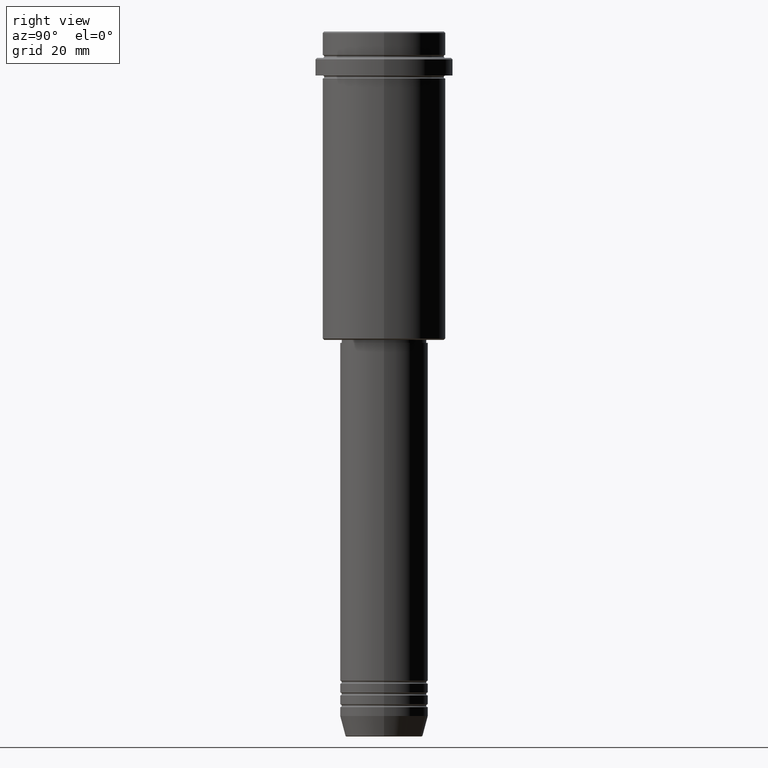
[diagram: clean part render]
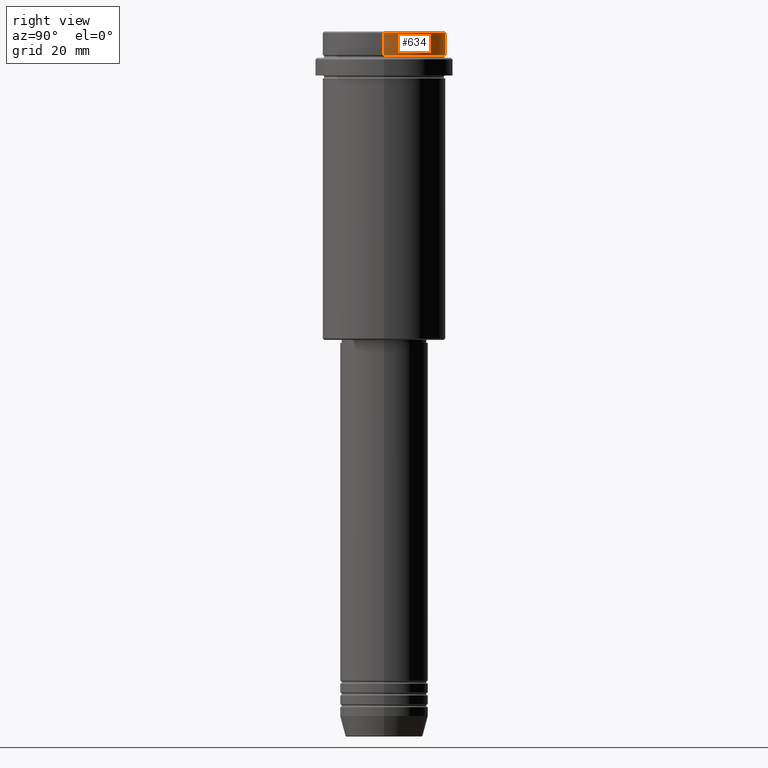
[diagram: same view with one face highlighted and labeled with its STEP entity id]
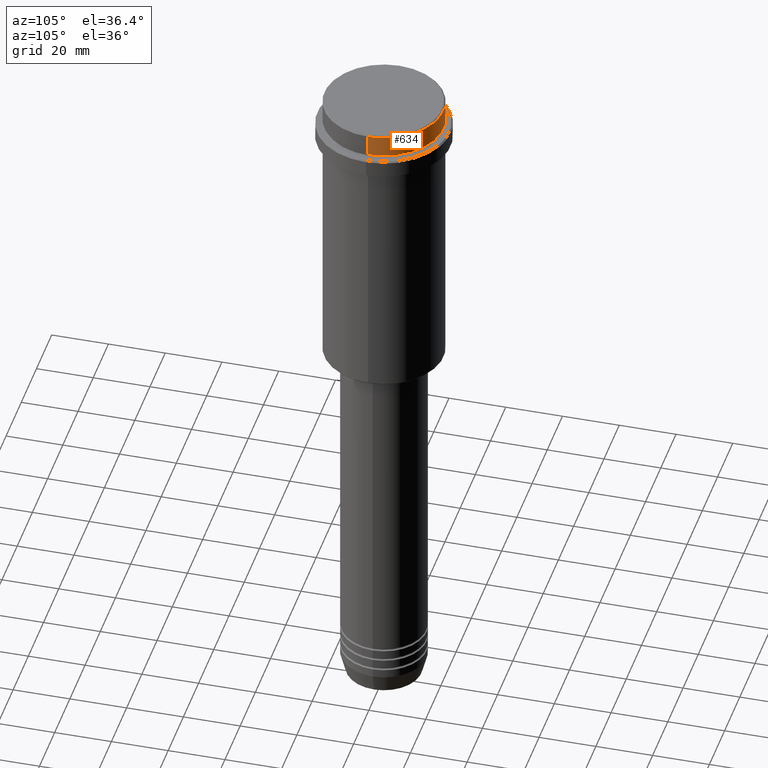
[diagram: same view with one face highlighted and labeled with its STEP entity id]
A machine part, right view. The second image highlights one B-rep face of the part: STEP entity #634.
A second angle (auxiliary view) of the same face is appended — the face is thin or edge-on in the first view.
In plain terms, the highlighted cylindrical surface (partial cylindrical patch) has radius 21 mm, axis along (-0, -0, 1).
Its self-contained STEP definition (entity closure, byte-faithful):
#22 = DIRECTION ( 'NONE',  ( -0.000000000000000000, -0.000000000000000000, 1.000000000000000000 ) ) ;
#46 = CARTESIAN_POINT ( 'NONE',  ( 0.000000000000000000, 0.000000000000000000, 0.000000000000000000 ) ) ;
#61 = CARTESIAN_POINT ( 'NONE',  ( -20.99999999999999645, 2.571758278209441267E-15, -0.5000000000000073275 ) ) ;
#82 = EDGE_CURVE ( 'NONE', #295, #583, #698, .T. ) ;
#194 = VERTEX_POINT ( 'NONE', #340 ) ;
#209 = AXIS2_PLACEMENT_3D ( 'NONE', #46, #22, #900 ) ;
#239 = DIRECTION ( 'NONE',  ( 1.000000000000000000, 0.000000000000000000, 0.000000000000000000 ) ) ;
#263 = CARTESIAN_POINT ( 'NONE',  ( 20.99999999999999645, 0.000000000000000000, 0.000000000000000000 ) ) ;
#292 = CARTESIAN_POINT ( 'NONE',  ( -20.99999999999999645, 2.571758278209441267E-15, -7.999999999999998224 ) ) ;
#295 = VERTEX_POINT ( 'NONE', #61 ) ;
#340 = CARTESIAN_POINT ( 'NONE',  ( 20.99999999999999645, 0.000000000000000000, -7.999999999999998224 ) ) ;
#342 = CARTESIAN_POINT ( 'NONE',  ( -20.99999999999999645, 2.571758278209441267E-15, 0.000000000000000000 ) ) ;
#403 = EDGE_CURVE ( 'NONE', #194, #758, #1285, .T. ) ;
#439 = ORIENTED_EDGE ( 'NONE', *, *, #1226, .T. ) ;
#455 = CYLINDRICAL_SURFACE ( 'NONE', #209, 20.99999999999999645 ) ;
#457 = DIRECTION ( 'NONE',  ( 0.000000000000000000, 0.000000000000000000, -1.000000000000000000 ) ) ;
#470 = FACE_OUTER_BOUND ( 'NONE', #735, .T. ) ;
#505 = ORIENTED_EDGE ( 'NONE', *, *, #628, .F. ) ;
#528 = DIRECTION ( 'NONE',  ( -0.000000000000000000, -0.000000000000000000, 1.000000000000000000 ) ) ;
#575 = LINE ( 'NONE', #263, #1356 ) ;
#583 = VERTEX_POINT ( 'NONE', #652 ) ;
#628 = EDGE_CURVE ( 'NONE', #194, #583, #575, .T. ) ;
#634 = ADVANCED_FACE ( 'NONE', ( #470 ), #455, .T. ) ;
#647 = CARTESIAN_POINT ( 'NONE',  ( 0.000000000000000000, 0.000000000000000000, -0.5000000000000073275 ) ) ;
#652 = CARTESIAN_POINT ( 'NONE',  ( 20.99999999999999645, 0.000000000000000000, -0.5000000000000073275 ) ) ;
#661 = AXIS2_PLACEMENT_3D ( 'NONE', #832, #1377, #1272 ) ;
#698 = CIRCLE ( 'NONE', #1261, 20.99999999999999645 ) ;
#735 = EDGE_LOOP ( 'NONE', ( #1364, #439, #889, #505 ) ) ;
#758 = VERTEX_POINT ( 'NONE', #292 ) ;
#832 = CARTESIAN_POINT ( 'NONE',  ( 0.000000000000000000, 0.000000000000000000, -7.999999999999998224 ) ) ;
#889 = ORIENTED_EDGE ( 'NONE', *, *, #82, .T. ) ;
#900 = DIRECTION ( 'NONE',  ( 1.000000000000000000, 0.000000000000000000, 0.000000000000000000 ) ) ;
#1016 = DIRECTION ( 'NONE',  ( -0.000000000000000000, -0.000000000000000000, 1.000000000000000000 ) ) ;
#1037 = VECTOR ( 'NONE', #528, 1000.000000000000000 ) ;
#1189 = LINE ( 'NONE', #342, #1037 ) ;
#1226 = EDGE_CURVE ( 'NONE', #758, #295, #1189, .T. ) ;
#1261 = AXIS2_PLACEMENT_3D ( 'NONE', #647, #457, #239 ) ;
#1272 = DIRECTION ( 'NONE',  ( 1.000000000000000000, 0.000000000000000000, 0.000000000000000000 ) ) ;
#1285 = CIRCLE ( 'NONE', #661, 20.99999999999999645 ) ;
#1356 = VECTOR ( 'NONE', #1016, 1000.000000000000000 ) ;
#1364 = ORIENTED_EDGE ( 'NONE', *, *, #403, .T. ) ;
#1377 = DIRECTION ( 'NONE',  ( -0.000000000000000000, -0.000000000000000000, 1.000000000000000000 ) ) ;